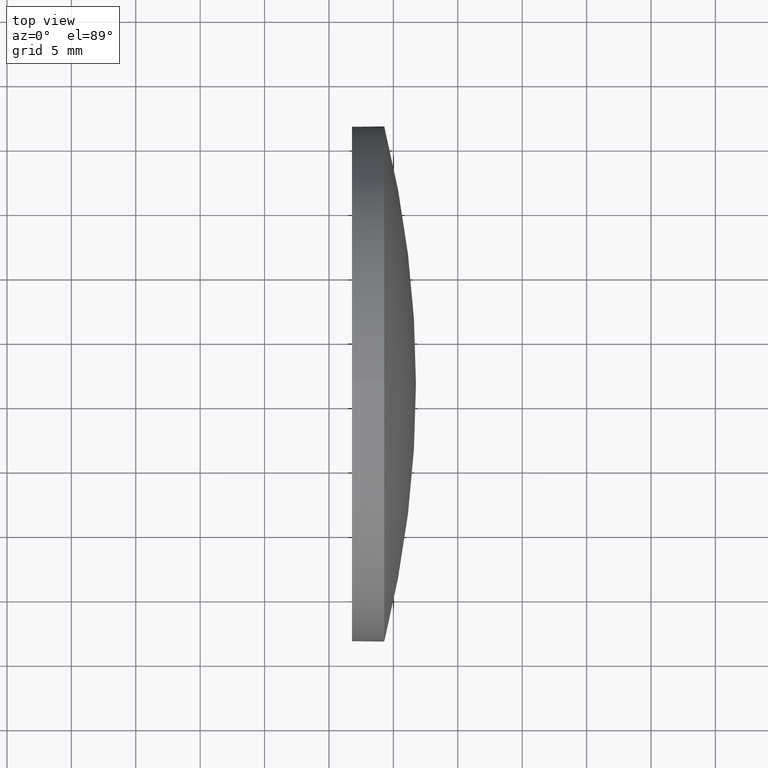
[diagram: clean part render]
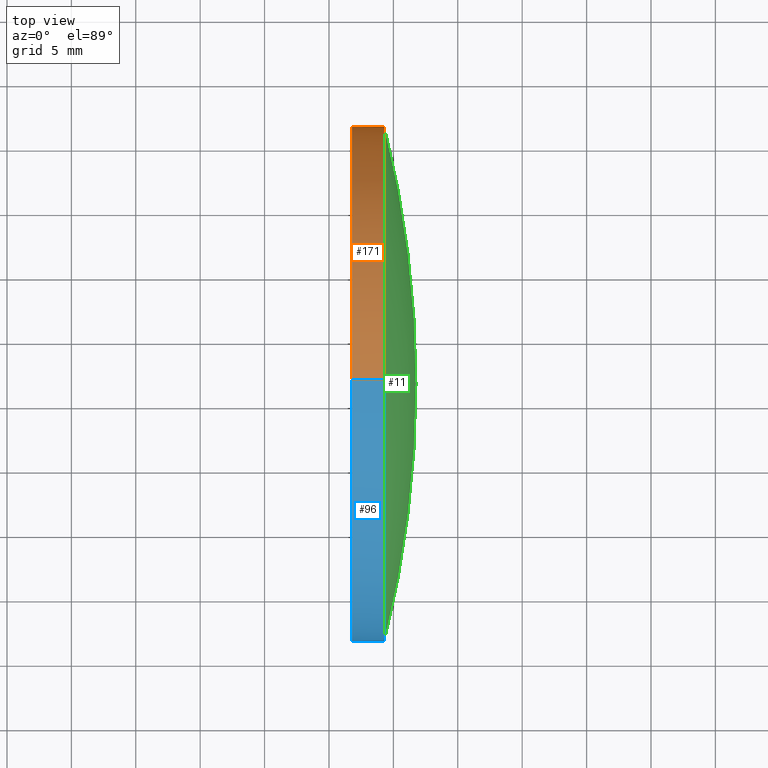
[diagram: same view with three faces highlighted in distinct colors, each labeled with its STEP entity id]
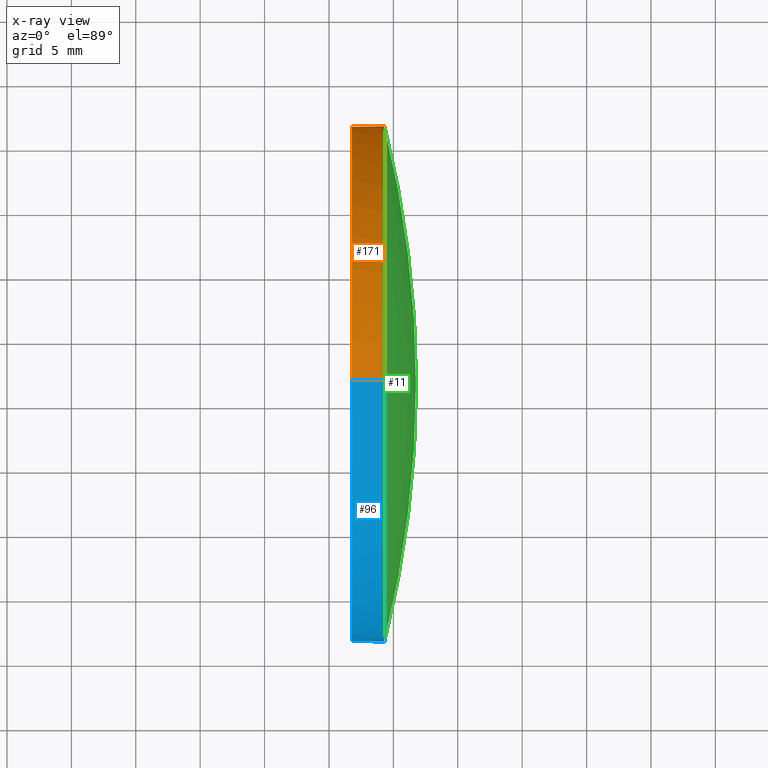
[diagram: x-ray of the same camera — body ghosted, the three highlighted faces saturated]
A machine part, top view with three faces highlighted in distinct colors.
The next image is the same camera in x-ray (body ghosted, the three faces saturated) — at least one of them is partly hidden behind the body in this view.
Their STEP definitions:

[orange] entity #171 — the highlighted cylindrical surface (partial cylindrical patch) has radius 20 mm, axis along (-1, -0, -0).
#1 = CARTESIAN_POINT ( 'NONE',  ( 459.2914818533709500, 106.5576231808466900, -19.99999999999998900 ) ) ;
#2 = DIRECTION ( 'NONE',  ( -1.000000000000000000, -0.0000000000000000000, -0.0000000000000000000 ) ) ;
#7 = DIRECTION ( 'NONE',  ( -1.000000000000000000, -0.0000000000000000000, -0.0000000000000000000 ) ) ;
#8 = CARTESIAN_POINT ( 'NONE',  ( 456.7914818533709500, 106.5576231808466900, -19.99999999999998900 ) ) ;
#14 = VECTOR ( 'NONE', #135, 1000.000000000000000 ) ;
#19 = EDGE_CURVE ( 'NONE', #54, #146, #44, .T. ) ;
#22 = DIRECTION ( 'NONE',  ( -1.000000000000000000, -0.0000000000000000000, -0.0000000000000000000 ) ) ;
#25 = VECTOR ( 'NONE', #70, 1000.000000000000000 ) ;
#26 = ORIENTED_EDGE ( 'NONE', *, *, #123, .F. ) ;
#36 = EDGE_LOOP ( 'NONE', ( #161, #131, #26, #160, #129 ) ) ;
#37 = AXIS2_PLACEMENT_3D ( 'NONE', #78, #22, #45 ) ;
#38 = FACE_OUTER_BOUND ( 'NONE', #36, .T. ) ;
#41 = CARTESIAN_POINT ( 'NONE',  ( 459.2914818533709500, 126.5576231808466500, 0.0000000000000000000 ) ) ;
#44 = LINE ( 'NONE', #150, #14 ) ;
#45 = DIRECTION ( 'NONE',  ( 0.0000000000000000000, 0.0000000000000000000, 1.000000000000000000 ) ) ;
#46 = AXIS2_PLACEMENT_3D ( 'NONE', #111, #124, #143 ) ;
#53 = CIRCLE ( 'NONE', #46, 19.99999999999998900 ) ;
#54 = VERTEX_POINT ( 'NONE', #104 ) ;
#58 = DIRECTION ( 'NONE',  ( 0.0000000000000000000, 0.0000000000000000000, 1.000000000000000000 ) ) ;
#67 = EDGE_CURVE ( 'NONE', #95, #85, #132, .T. ) ;
#70 = DIRECTION ( 'NONE',  ( -1.000000000000000000, -0.0000000000000000000, -0.0000000000000000000 ) ) ;
#75 = CARTESIAN_POINT ( 'NONE',  ( 456.7914818533709500, 106.5576231808466900, 19.99999999999998900 ) ) ;
#78 = CARTESIAN_POINT ( 'NONE',  ( 447.2849845335977100, 106.5576231808466900, 0.0000000000000000000 ) ) ;
#85 = VERTEX_POINT ( 'NONE', #1 ) ;
#87 = CARTESIAN_POINT ( 'NONE',  ( 459.2914818533709500, 106.5576231808466900, 0.0000000000000000000 ) ) ;
#89 = DIRECTION ( 'NONE',  ( 0.0000000000000000000, 0.0000000000000000000, 1.000000000000000000 ) ) ;
#90 = EDGE_CURVE ( 'NONE', #85, #140, #126, .T. ) ;
#95 = VERTEX_POINT ( 'NONE', #41 ) ;
#104 = CARTESIAN_POINT ( 'NONE',  ( 459.2914818533709500, 106.5576231808466900, 19.99999999999998900 ) ) ;
#107 = CARTESIAN_POINT ( 'NONE',  ( 447.2849845335977100, 106.5576231808466900, -19.99999999999998900 ) ) ;
#108 = CARTESIAN_POINT ( 'NONE',  ( 456.7914818533709500, 106.5576231808466900, 0.0000000000000000000 ) ) ;
#111 = CARTESIAN_POINT ( 'NONE',  ( 459.2914818533709500, 106.5576231808466900, 0.0000000000000000000 ) ) ;
#113 = AXIS2_PLACEMENT_3D ( 'NONE', #108, #7, #89 ) ;
#115 = CYLINDRICAL_SURFACE ( 'NONE', #37, 19.99999999999998900 ) ;
#118 = CIRCLE ( 'NONE', #113, 19.99999999999998900 ) ;
#123 = EDGE_CURVE ( 'NONE', #146, #140, #118, .T. ) ;
#124 = DIRECTION ( 'NONE',  ( -1.000000000000000000, -0.0000000000000000000, -0.0000000000000000000 ) ) ;
#126 = LINE ( 'NONE', #107, #25 ) ;
#129 = ORIENTED_EDGE ( 'NONE', *, *, #173, .T. ) ;
#131 = ORIENTED_EDGE ( 'NONE', *, *, #90, .T. ) ;
#132 = CIRCLE ( 'NONE', #158, 19.99999999999998900 ) ;
#135 = DIRECTION ( 'NONE',  ( -1.000000000000000000, -0.0000000000000000000, -0.0000000000000000000 ) ) ;
#140 = VERTEX_POINT ( 'NONE', #8 ) ;
#143 = DIRECTION ( 'NONE',  ( 0.0000000000000000000, 0.0000000000000000000, 1.000000000000000000 ) ) ;
#146 = VERTEX_POINT ( 'NONE', #75 ) ;
#150 = CARTESIAN_POINT ( 'NONE',  ( 447.2849845335977100, 106.5576231808466900, 19.99999999999998900 ) ) ;
#158 = AXIS2_PLACEMENT_3D ( 'NONE', #87, #2, #58 ) ;
#160 = ORIENTED_EDGE ( 'NONE', *, *, #19, .F. ) ;
#161 = ORIENTED_EDGE ( 'NONE', *, *, #67, .T. ) ;
#171 = ADVANCED_FACE ( 'NONE', ( #38 ), #115, .T. ) ;
#173 = EDGE_CURVE ( 'NONE', #54, #95, #53, .T. ) ;

[blue] entity #96 — the highlighted cylindrical surface (partial cylindrical patch) has radius 20 mm, axis along (-1, -0, -0).
#1 = CARTESIAN_POINT ( 'NONE',  ( 459.2914818533709500, 106.5576231808466900, -19.99999999999998900 ) ) ;
#6 = FACE_OUTER_BOUND ( 'NONE', #148, .T. ) ;
#8 = CARTESIAN_POINT ( 'NONE',  ( 456.7914818533709500, 106.5576231808466900, -19.99999999999998900 ) ) ;
#13 = ORIENTED_EDGE ( 'NONE', *, *, #90, .F. ) ;
#14 = VECTOR ( 'NONE', #135, 1000.000000000000000 ) ;
#16 = DIRECTION ( 'NONE',  ( 0.0000000000000000000, 0.0000000000000000000, 1.000000000000000000 ) ) ;
#17 = EDGE_CURVE ( 'NONE', #185, #54, #184, .T. ) ;
#19 = EDGE_CURVE ( 'NONE', #54, #146, #44, .T. ) ;
#25 = VECTOR ( 'NONE', #70, 1000.000000000000000 ) ;
#40 = CARTESIAN_POINT ( 'NONE',  ( 459.2914818533709500, 106.5576231808466900, 0.0000000000000000000 ) ) ;
#44 = LINE ( 'NONE', #150, #14 ) ;
#48 = DIRECTION ( 'NONE',  ( 0.0000000000000000000, 0.0000000000000000000, 1.000000000000000000 ) ) ;
#51 = CYLINDRICAL_SURFACE ( 'NONE', #119, 19.99999999999998900 ) ;
#54 = VERTEX_POINT ( 'NONE', #104 ) ;
#56 = DIRECTION ( 'NONE',  ( -1.000000000000000000, -0.0000000000000000000, -0.0000000000000000000 ) ) ;
#59 = DIRECTION ( 'NONE',  ( -1.000000000000000000, -0.0000000000000000000, -0.0000000000000000000 ) ) ;
#61 = AXIS2_PLACEMENT_3D ( 'NONE', #125, #92, #48 ) ;
#70 = DIRECTION ( 'NONE',  ( -1.000000000000000000, -0.0000000000000000000, -0.0000000000000000000 ) ) ;
#75 = CARTESIAN_POINT ( 'NONE',  ( 456.7914818533709500, 106.5576231808466900, 19.99999999999998900 ) ) ;
#76 = ORIENTED_EDGE ( 'NONE', *, *, #19, .T. ) ;
#84 = AXIS2_PLACEMENT_3D ( 'NONE', #40, #59, #153 ) ;
#85 = VERTEX_POINT ( 'NONE', #1 ) ;
#86 = CARTESIAN_POINT ( 'NONE',  ( 447.2849845335977100, 106.5576231808466900, 0.0000000000000000000 ) ) ;
#90 = EDGE_CURVE ( 'NONE', #85, #140, #126, .T. ) ;
#92 = DIRECTION ( 'NONE',  ( -1.000000000000000000, -0.0000000000000000000, -0.0000000000000000000 ) ) ;
#94 = DIRECTION ( 'NONE',  ( -1.000000000000000000, -0.0000000000000000000, -0.0000000000000000000 ) ) ;
#96 = ADVANCED_FACE ( 'NONE', ( #6 ), #51, .T. ) ;
#98 = AXIS2_PLACEMENT_3D ( 'NONE', #154, #94, #142 ) ;
#102 = EDGE_CURVE ( 'NONE', #85, #185, #149, .T. ) ;
#103 = ORIENTED_EDGE ( 'NONE', *, *, #137, .F. ) ;
#104 = CARTESIAN_POINT ( 'NONE',  ( 459.2914818533709500, 106.5576231808466900, 19.99999999999998900 ) ) ;
#107 = CARTESIAN_POINT ( 'NONE',  ( 447.2849845335977100, 106.5576231808466900, -19.99999999999998900 ) ) ;
#112 = CARTESIAN_POINT ( 'NONE',  ( 459.2914818533709500, 86.55762318084667600, -2.449293598294701000E-015 ) ) ;
#119 = AXIS2_PLACEMENT_3D ( 'NONE', #86, #56, #16 ) ;
#125 = CARTESIAN_POINT ( 'NONE',  ( 459.2914818533709500, 106.5576231808466900, 0.0000000000000000000 ) ) ;
#126 = LINE ( 'NONE', #107, #25 ) ;
#127 = ORIENTED_EDGE ( 'NONE', *, *, #102, .T. ) ;
#135 = DIRECTION ( 'NONE',  ( -1.000000000000000000, -0.0000000000000000000, -0.0000000000000000000 ) ) ;
#137 = EDGE_CURVE ( 'NONE', #140, #146, #155, .T. ) ;
#140 = VERTEX_POINT ( 'NONE', #8 ) ;
#142 = DIRECTION ( 'NONE',  ( 0.0000000000000000000, 0.0000000000000000000, 1.000000000000000000 ) ) ;
#146 = VERTEX_POINT ( 'NONE', #75 ) ;
#148 = EDGE_LOOP ( 'NONE', ( #13, #127, #168, #76, #103 ) ) ;
#149 = CIRCLE ( 'NONE', #61, 19.99999999999998900 ) ;
#150 = CARTESIAN_POINT ( 'NONE',  ( 447.2849845335977100, 106.5576231808466900, 19.99999999999998900 ) ) ;
#153 = DIRECTION ( 'NONE',  ( 0.0000000000000000000, 0.0000000000000000000, 1.000000000000000000 ) ) ;
#154 = CARTESIAN_POINT ( 'NONE',  ( 456.7914818533709500, 106.5576231808466900, 0.0000000000000000000 ) ) ;
#155 = CIRCLE ( 'NONE', #98, 19.99999999999998900 ) ;
#168 = ORIENTED_EDGE ( 'NONE', *, *, #17, .T. ) ;
#184 = CIRCLE ( 'NONE', #84, 19.99999999999998900 ) ;
#185 = VERTEX_POINT ( 'NONE', #112 ) ;

[green] entity #11 — the highlighted spherical surface has radius 82.5308 mm.
#11 = ADVANCED_FACE ( 'NONE', ( #60 ), #164, .T. ) ;
#12 = AXIS2_PLACEMENT_3D ( 'NONE', #21, #64, #93 ) ;
#15 = ORIENTED_EDGE ( 'NONE', *, *, #17, .F. ) ;
#17 = EDGE_CURVE ( 'NONE', #185, #54, #184, .T. ) ;
#21 = CARTESIAN_POINT ( 'NONE',  ( 379.2206688452406500, 106.5576231808466300, 0.0000000000000000000 ) ) ;
#27 = CARTESIAN_POINT ( 'NONE',  ( 461.7514818533708800, 106.5576231808466300, 0.0000000000000000000 ) ) ;
#28 = CIRCLE ( 'NONE', #12, 82.53081300813025200 ) ;
#29 = DIRECTION ( 'NONE',  ( 0.0000000000000000000, 1.224646799147353200E-016, -1.000000000000000000 ) ) ;
#39 = VERTEX_POINT ( 'NONE', #27 ) ;
#40 = CARTESIAN_POINT ( 'NONE',  ( 459.2914818533709500, 106.5576231808466900, 0.0000000000000000000 ) ) ;
#41 = CARTESIAN_POINT ( 'NONE',  ( 459.2914818533709500, 126.5576231808466500, 0.0000000000000000000 ) ) ;
#46 = AXIS2_PLACEMENT_3D ( 'NONE', #111, #124, #143 ) ;
#53 = CIRCLE ( 'NONE', #46, 19.99999999999998900 ) ;
#54 = VERTEX_POINT ( 'NONE', #104 ) ;
#59 = DIRECTION ( 'NONE',  ( -1.000000000000000000, -0.0000000000000000000, -0.0000000000000000000 ) ) ;
#60 = FACE_OUTER_BOUND ( 'NONE', #110, .T. ) ;
#64 = DIRECTION ( 'NONE',  ( -0.0000000000000000000, 0.0000000000000000000, 1.000000000000000000 ) ) ;
#77 = EDGE_CURVE ( 'NONE', #39, #185, #175, .T. ) ;
#84 = AXIS2_PLACEMENT_3D ( 'NONE', #40, #59, #153 ) ;
#88 = ORIENTED_EDGE ( 'NONE', *, *, #116, .T. ) ;
#93 = DIRECTION ( 'NONE',  ( 1.000000000000000000, 0.0000000000000000000, 0.0000000000000000000 ) ) ;
#95 = VERTEX_POINT ( 'NONE', #41 ) ;
#97 = ORIENTED_EDGE ( 'NONE', *, *, #77, .F. ) ;
#99 = AXIS2_PLACEMENT_3D ( 'NONE', #121, #151, #134 ) ;
#104 = CARTESIAN_POINT ( 'NONE',  ( 459.2914818533709500, 106.5576231808466900, 19.99999999999998900 ) ) ;
#106 = CARTESIAN_POINT ( 'NONE',  ( 379.2206688452406500, 106.5576231808466300, 0.0000000000000000000 ) ) ;
#110 = EDGE_LOOP ( 'NONE', ( #97, #88, #114, #15 ) ) ;
#111 = CARTESIAN_POINT ( 'NONE',  ( 459.2914818533709500, 106.5576231808466900, 0.0000000000000000000 ) ) ;
#112 = CARTESIAN_POINT ( 'NONE',  ( 459.2914818533709500, 86.55762318084667600, -2.449293598294701000E-015 ) ) ;
#114 = ORIENTED_EDGE ( 'NONE', *, *, #173, .F. ) ;
#116 = EDGE_CURVE ( 'NONE', #39, #95, #28, .T. ) ;
#120 = DIRECTION ( 'NONE',  ( 0.0000000000000000000, 1.000000000000000000, 1.224646799147353200E-016 ) ) ;
#121 = CARTESIAN_POINT ( 'NONE',  ( 379.2206688452406500, 106.5576231808466300, 0.0000000000000000000 ) ) ;
#124 = DIRECTION ( 'NONE',  ( -1.000000000000000000, -0.0000000000000000000, -0.0000000000000000000 ) ) ;
#134 = DIRECTION ( 'NONE',  ( 0.0000000000000000000, 1.000000000000000000, 0.0000000000000000000 ) ) ;
#143 = DIRECTION ( 'NONE',  ( 0.0000000000000000000, 0.0000000000000000000, 1.000000000000000000 ) ) ;
#151 = DIRECTION ( 'NONE',  ( -0.0000000000000000000, 0.0000000000000000000, -1.000000000000000000 ) ) ;
#153 = DIRECTION ( 'NONE',  ( 0.0000000000000000000, 0.0000000000000000000, 1.000000000000000000 ) ) ;
#164 = SPHERICAL_SURFACE ( 'NONE', #99, 82.53081300813028100 ) ;
#173 = EDGE_CURVE ( 'NONE', #54, #95, #53, .T. ) ;
#175 = CIRCLE ( 'NONE', #180, 82.53081300813028100 ) ;
#180 = AXIS2_PLACEMENT_3D ( 'NONE', #106, #29, #120 ) ;
#184 = CIRCLE ( 'NONE', #84, 19.99999999999998900 ) ;
#185 = VERTEX_POINT ( 'NONE', #112 ) ;